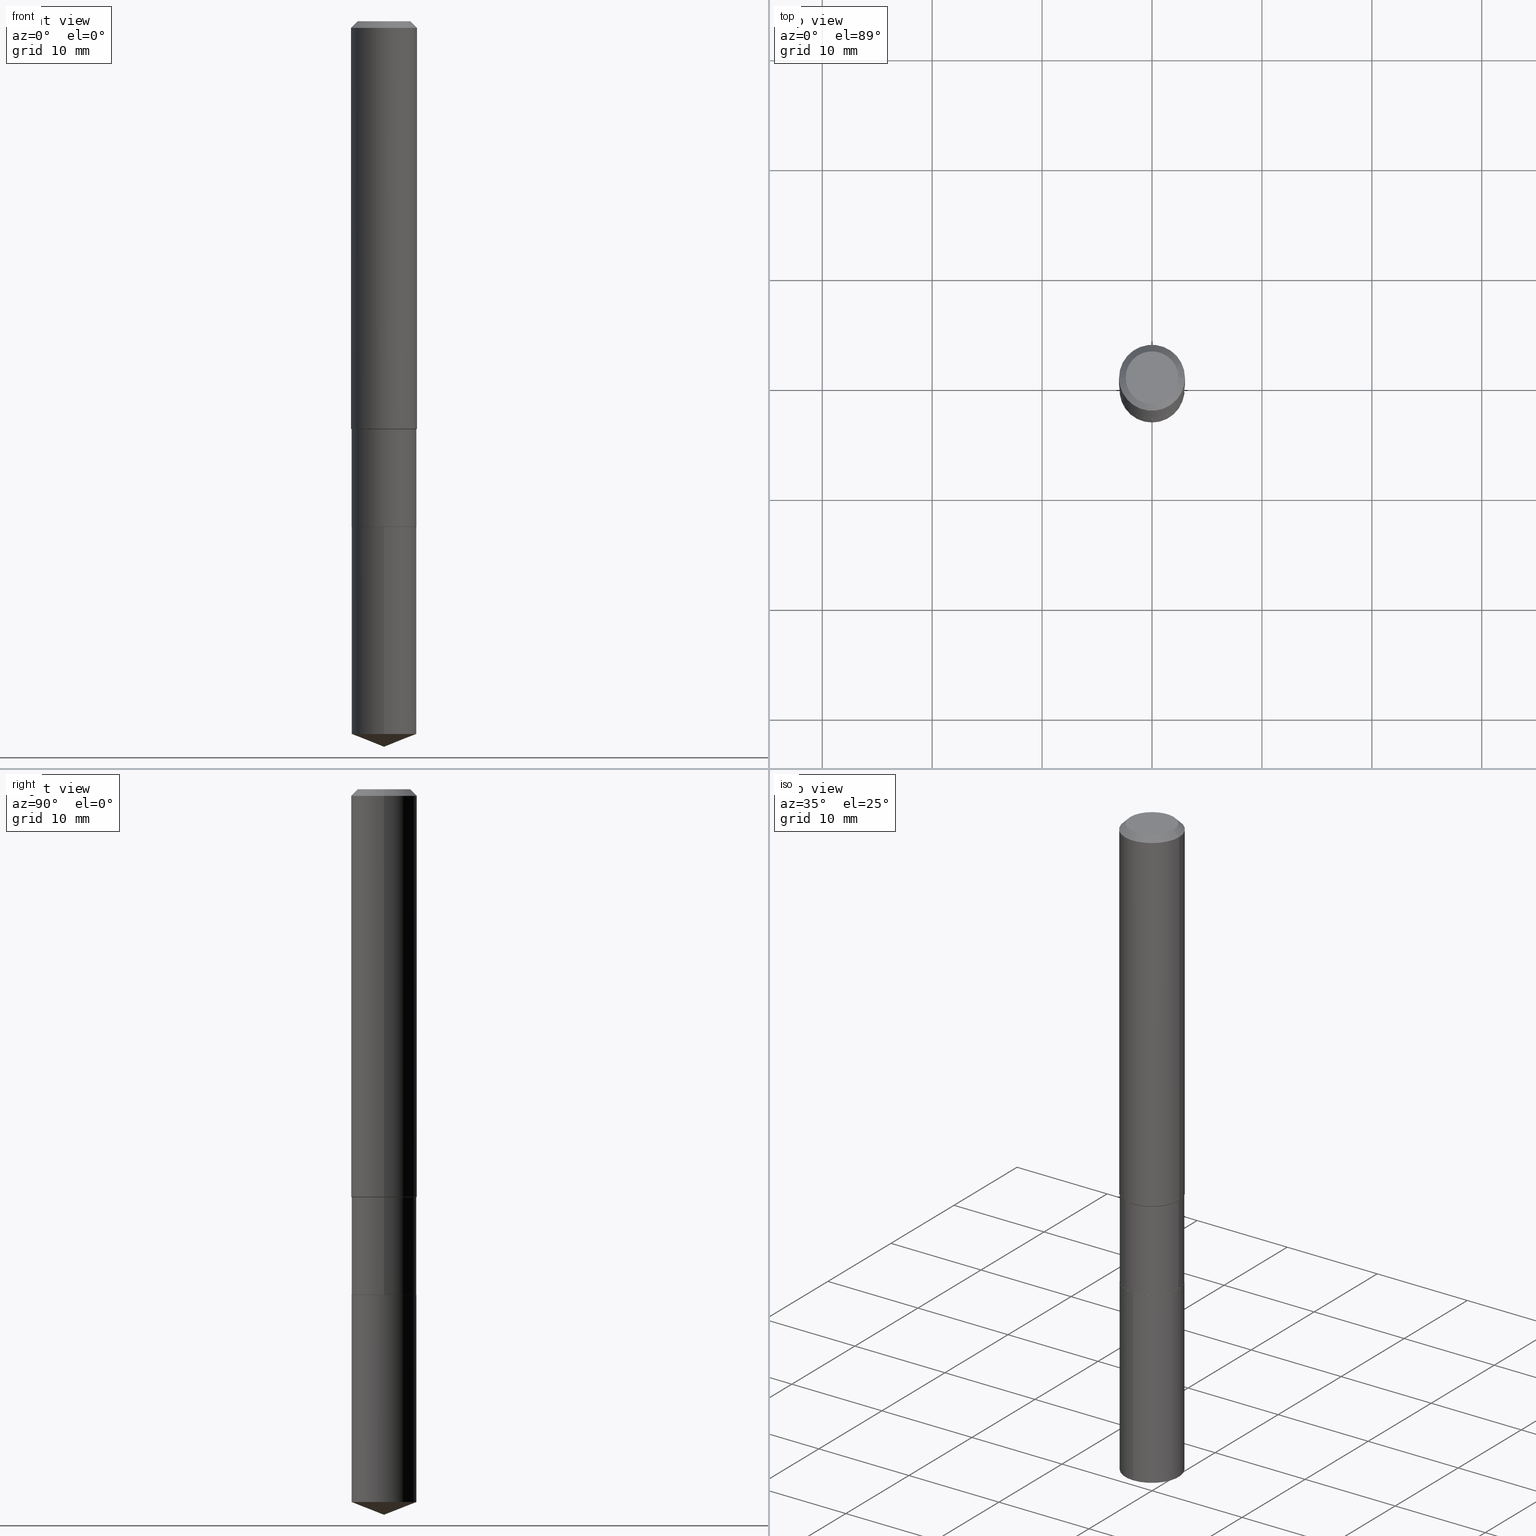
[diagram: canonical four-view strip — front | top / right | iso, engineering-drawing reading convention]
A machine part, canonical four-view strip (front | top / right | iso — engineering-drawing reading convention). The complete STEP part file that produces these views, byte-faithful:
ISO-10303-21;
HEADER;
FILE_DESCRIPTION (( 'STEP AP203' ),
    '1' );
FILE_NAME ('66429.STEP',
    '2024-04-24T22:37:58',
    ( '' ),
    ( '' ),
    'SwSTEP 2.0',
    'SolidWorks 2023',
    '' );
FILE_SCHEMA (( 'CONFIG_CONTROL_DESIGN' ));
ENDSEC;

DATA;
#1 = CC_DESIGN_PERSON_AND_ORGANIZATION_ASSIGNMENT ( #156, #199, ( #112 ) ) ;
#2 = DIRECTION ( 'NONE',  ( -6.982962677686265922E-15, -1.000000000000000000, 2.351999994545211393E-15 ) ) ;
#3 = CALENDAR_DATE ( 2024, 24, 4 ) ;
#4 =( NAMED_UNIT ( * ) SI_UNIT ( $, .STERADIAN. ) SOLID_ANGLE_UNIT ( ) );
#5 = VERTEX_POINT ( 'NONE', #274 ) ;
#6 = DIRECTION ( 'NONE',  ( 2.445468806185136597E-29, -3.491481338843145583E-15, -1.000000000000000000 ) ) ;
#7 = CARTESIAN_POINT ( 'NONE',  ( 0.000000000000000000, 0.000000000000000000, 0.000000000000000000 ) ) ;
#8 = CIRCLE ( 'NONE', #376, 0.1180999999999999966 ) ;
#9 = CONICAL_SURFACE ( 'NONE', #242, 99.94676754583970535, 1.195550537616118625 ) ;
#10 = CARTESIAN_POINT ( 'NONE',  ( 0.1180999999999999966, -9.071566814582237199E-16, -0.02362000000000014088 ) ) ;
#11 = UNCERTAINTY_MEASURE_WITH_UNIT (LENGTH_MEASURE( 1.000000000000000082E-05 ), #81, 'distance_accuracy_value', 'NONE');
#12 = ADVANCED_FACE ( 'NONE', ( #427 ), #18, .T. ) ;
#13 = DIRECTION ( 'NONE',  ( 1.000000000000000000, -6.982962677686266711E-15, 0.000000000000000000 ) ) ;
#14 = DIRECTION ( 'NONE',  ( -2.445580598395875501E-29, 3.491321246034550326E-15, 1.000000000000000000 ) ) ;
#15 = DIRECTION ( 'NONE',  ( 1.000000000000000000, -6.982962677686269866E-15, 0.000000000000000000 ) ) ;
#16 = EDGE_CURVE ( 'NONE', #17, #189, #161, .T. ) ;
#17 = VERTEX_POINT ( 'NONE', #236 ) ;
#18 = CONICAL_SURFACE ( 'NONE', #82, 0.1156500000000000028, 0.7853981633975507526 ) ;
#19 = CIRCLE ( 'NONE', #487, 0.1161500000000000032 ) ;
#20 = APPROVAL_DATE_TIME ( #325, #33 ) ;
#21 = PRODUCT_DEFINITION ( 'UNKNOWN', '', #112, #97 ) ;
#22 = LINE ( 'NONE', #343, #224 ) ;
#23 = DIRECTION ( 'NONE',  ( -6.982962677686265922E-15, -1.000000000000000000, 2.351999994545211393E-15 ) ) ;
#24 = ORIENTED_EDGE ( 'NONE', *, *, #470, .F. ) ;
#25 = CARTESIAN_POINT ( 'NONE',  ( 4.428744008001282238E-29, -6.323072704644935995E-15, -1.810999999999999943 ) ) ;
#26 = DIRECTION ( 'NONE',  ( 1.000000000000000000, -6.982962677686263555E-15, 0.000000000000000000 ) ) ;
#27 = DIRECTION ( 'NONE',  ( -2.445580598395875501E-29, 3.491321246034550326E-15, 1.000000000000000000 ) ) ;
#28 = APPROVAL_ROLE ( '' ) ;
#29 = ORIENTED_EDGE ( 'NONE', *, *, #71, .T. ) ;
#30 = ORIENTED_EDGE ( 'NONE', *, *, #338, .T. ) ;
#31 = CIRCLE ( 'NONE', #214, 0.1161499999999999477 ) ;
#32 = CC_DESIGN_SECURITY_CLASSIFICATION ( #220, ( #112 ) ) ;
#33 = APPROVAL ( #108, 'UNSPECIFIED' ) ;
#34 = VERTEX_POINT ( 'NONE', #10 ) ;
#35 = PLANE ( 'NONE',  #349 ) ;
#36 = ORIENTED_EDGE ( 'NONE', *, *, #454, .F. ) ;
#37 = LINE ( 'NONE', #183, #429 ) ;
#38 = DIRECTION ( 'NONE',  ( 1.000000000000000000, -6.982962677686269866E-15, 0.000000000000000000 ) ) ;
#39 = ORIENTED_EDGE ( 'NONE', *, *, #40, .F. ) ;
#40 = EDGE_CURVE ( 'NONE', #149, #458, #339, .T. ) ;
#41 = AXIS2_PLACEMENT_3D ( 'NONE', #372, #192, #123 ) ;
#42 = ORIENTED_EDGE ( 'NONE', *, *, #79, .F. ) ;
#43 = DIRECTION ( 'NONE',  ( -6.982962677686265922E-15, -1.000000000000000000, 2.351999994545211393E-15 ) ) ;
#44 = DIRECTION ( 'NONE',  ( -1.000000000000000000, 6.982962677686266711E-15, 0.000000000000000000 ) ) ;
#45 = CIRCLE ( 'NONE', #486, 0.1161500000000000032 ) ;
#46 = DIRECTION ( 'NONE',  ( 6.611014441532064222E-15, 0.9304175679820269051, 0.3665012267242913624 ) ) ;
#47 = CALENDAR_DATE ( 2024, 24, 4 ) ;
#48 =( NAMED_UNIT ( * ) PLANE_ANGLE_UNIT ( ) SI_UNIT ( $, .RADIAN. ) );
#49 = VERTEX_POINT ( 'NONE', #409 ) ;
#50 = LINE ( 'NONE', #344, #137 ) ;
#51 = ADVANCED_FACE ( 'NONE', ( #226 ), #370, .F. ) ;
#52 = ORIENTED_EDGE ( 'NONE', *, *, #408, .F. ) ;
#53 = AXIS2_PLACEMENT_3D ( 'NONE', #146, #469, #480 ) ;
#54 = CIRCLE ( 'NONE', #163, 0.1161500000000000032 ) ;
#55 = DIRECTION ( 'NONE',  ( -2.445468806185136597E-29, 3.491481338843145583E-15, 1.000000000000000000 ) ) ;
#56 = PERSON_AND_ORGANIZATION ( #463, #296 ) ;
#57 = DIRECTION ( 'NONE',  ( -2.445468806185136597E-29, 3.491481338843145583E-15, 1.000000000000000000 ) ) ;
#58 = EDGE_CURVE ( 'NONE', #219, #34, #253, .T. ) ;
#59 = CARTESIAN_POINT ( 'NONE',  ( -8.992830655306888007E-28, 1.283814533097924316E-13, 36.77167874015748339 ) ) ;
#60 = CARTESIAN_POINT ( 'NONE',  ( 3.568550355425659512E-29, -5.094944143706858142E-15, -1.459249999999999492 ) ) ;
#61 = CC_DESIGN_PERSON_AND_ORGANIZATION_ASSIGNMENT ( #415, #234, ( #220 ) ) ;
#62 = CALENDAR_DATE ( 2024, 24, 4 ) ;
#63 = AXIS2_PLACEMENT_3D ( 'NONE', #60, #176, #26 ) ;
#64 = CIRCLE ( 'NONE', #69, 0.09447999999999998066 ) ;
#65 = EDGE_CURVE ( 'NONE', #301, #219, #316, .T. ) ;
#66 = ORIENTED_EDGE ( 'NONE', *, *, #408, .T. ) ;
#67 = CLOSED_SHELL ( 'NONE', ( #300, #186, #363, #198, #250, #266, #449, #175, #170, #51, #473, #12 ) ) ;
#68 = AXIS2_PLACEMENT_3D ( 'NONE', #428, #315, #23 ) ;
#69 = AXIS2_PLACEMENT_3D ( 'NONE', #388, #334, #308 ) ;
#70 = VERTEX_POINT ( 'NONE', #323 ) ;
#71 = EDGE_CURVE ( 'NONE', #5, #264, #354, .T. ) ;
#72 = VECTOR ( 'NONE', #282, 39.37007874015748143 ) ;
#73 = AXIS2_PLACEMENT_3D ( 'NONE', #249, #452, #271 ) ;
#74 = ORIENTED_EDGE ( 'NONE', *, *, #58, .T. ) ;
#75 = LINE ( 'NONE', #184, #277 ) ;
#76 = CARTESIAN_POINT ( 'NONE',  ( 5.776197320209327532E-31, -8.246878922347559293E-17, -0.02362000000000014088 ) ) ;
#77 = CARTESIAN_POINT ( 'NONE',  ( 4.428744008001282238E-29, -6.323072704644935995E-15, -1.810999999999999943 ) ) ;
#78 = DIRECTION ( 'NONE',  ( 0.7071067811866199593, -2.468850131083015945E-15, 0.7071067811864750752 ) ) ;
#79 = EDGE_CURVE ( 'NONE', #153, #472, #45, .T. ) ;
#80 = CARTESIAN_POINT ( 'NONE',  ( -0.1156500000000000028, -5.501330030738379913E-15, -1.810999999999999943 ) ) ;
#81 =( CONVERSION_BASED_UNIT ( 'INCH', #475 ) LENGTH_UNIT ( ) NAMED_UNIT ( #101 ) );
#82 = AXIS2_PLACEMENT_3D ( 'NONE', #107, #204, #38 ) ;
#83 = VECTOR ( 'NONE', #105, 39.37007874015748143 ) ;
#84 = MECHANICAL_CONTEXT ( 'NONE', #314, 'mechanical' ) ;
#85 = DIRECTION ( 'NONE',  ( 1.000000000000000000, -6.982962677686266711E-15, 0.000000000000000000 ) ) ;
#86 = FACE_OUTER_BOUND ( 'NONE', #180, .T. ) ;
#87 = EDGE_LOOP ( 'NONE', ( #172, #223, #39, #426 ) ) ;
#88 = CARTESIAN_POINT ( 'NONE',  ( -8.110711150131975245E-16, -0.1161500000000089128, -2.552647298257324060 ) ) ;
#89 = MANIFOLD_SOLID_BREP ( 'Body-Move/Copy2[2]', #67 ) ;
#90 = ORIENTED_EDGE ( 'NONE', *, *, #239, .F. ) ;
#91 = FACE_OUTER_BOUND ( 'NONE', #87, .T. ) ;
#92 = AXIS2_PLACEMENT_3D ( 'NONE', #222, #438, #286 ) ;
#93 = CC_DESIGN_DATE_AND_TIME_ASSIGNMENT ( #289, #135, ( #21 ) ) ;
#94 = DIRECTION ( 'NONE',  ( -6.497071151882117470E-15, -0.9304175679820243516, 0.3665012267242979127 ) ) ;
#95 = DIRECTION ( 'NONE',  ( 1.000000000000000000, -6.982962677686269866E-15, 0.000000000000000000 ) ) ;
#96 = AXIS2_PLACEMENT_3D ( 'NONE', #441, #141, #85 ) ;
#97 = DESIGN_CONTEXT ( 'detailed design', #130, 'design' ) ;
#98 = EDGE_LOOP ( 'NONE', ( #255, #464, #425, #256 ) ) ;
#99 = APPROVAL_PERSON_ORGANIZATION ( #284, #402, #379 ) ;
#100 = EDGE_CURVE ( 'NONE', #153, #436, #479, .T. ) ;
#101 = DIMENSIONAL_EXPONENTS ( 1.000000000000000000, 0.000000000000000000, 0.000000000000000000, 0.000000000000000000, 0.000000000000000000, 0.000000000000000000, 0.000000000000000000 ) ;
#102 = CIRCLE ( 'NONE', #96, 0.1180999999999999966 ) ;
#103 = CC_DESIGN_APPROVAL ( #422, ( #220 ) ) ;
#104 = EDGE_CURVE ( 'NONE', #5, #34, #37, .T. ) ;
#105 = DIRECTION ( 'NONE',  ( -2.445580598395875221E-29, 3.491321246034550326E-15, 1.000000000000000000 ) ) ;
#106 = EDGE_CURVE ( 'NONE', #357, #34, #102, .T. ) ;
#107 = CARTESIAN_POINT ( 'NONE',  ( 4.428744008001282238E-29, -6.323072704644935995E-15, -1.810999999999999943 ) ) ;
#108 = APPROVAL_STATUS ( 'not_yet_approved' ) ;
#109 = ORIENTED_EDGE ( 'NONE', *, *, #352, .T. ) ;
#110 = DIRECTION ( 'NONE',  ( -2.445468806185136597E-29, 3.491481338843145583E-15, 1.000000000000000000 ) ) ;
#111 = CONICAL_SURFACE ( 'NONE', #395, 0.1180999999999999966, 0.7853981633974460586 ) ;
#112 = PRODUCT_DEFINITION_FORMATION_WITH_SPECIFIED_SOURCE ( 'ANY', '', #122, .NOT_KNOWN. ) ;
#113 = DIRECTION ( 'NONE',  ( -2.445468806185136597E-29, 3.491481338843145583E-15, 1.000000000000000000 ) ) ;
#114 = ORIENTED_EDGE ( 'NONE', *, *, #152, .F. ) ;
#115 = EDGE_LOOP ( 'NONE', ( #114, #365, #181, #369 ) ) ;
#116 = ORIENTED_EDGE ( 'NONE', *, *, #104, .F. ) ;
#117 = CC_DESIGN_DATE_AND_TIME_ASSIGNMENT ( #159, #139, ( #220 ) ) ;
#118 = DIRECTION ( 'NONE',  ( 2.438088387897960049E-29, -3.491481338843145188E-15, -1.000000000000000000 ) ) ;
#119 = APPLICATION_PROTOCOL_DEFINITION ( 'international standard', 'config_control_design', 1994, #130 ) ;
#120 = FACE_OUTER_BOUND ( 'NONE', #345, .T. ) ;
#121 = EDGE_LOOP ( 'NONE', ( #361, #417 ) ) ;
#122 = PRODUCT ( '66429', '66429', '', ( #84 ) ) ;
#123 = DIRECTION ( 'NONE',  ( 1.000000000000000000, -6.982962677686266711E-15, 4.876176775795936353E-29 ) ) ;
#124 = ORIENTED_EDGE ( 'NONE', *, *, #459, .F. ) ;
#125 = PERSON_AND_ORGANIZATION_ROLE ( 'creator' ) ;
#126 = LOCAL_TIME ( 18, 37, 58.00000000000000000, #273 ) ;
#127 = CARTESIAN_POINT ( 'NONE',  ( 4.428744008001282238E-29, -6.323072704644935995E-15, -1.810999999999999943 ) ) ;
#128 = EDGE_CURVE ( 'NONE', #34, #357, #8, .T. ) ;
#129 = ORIENTED_EDGE ( 'NONE', *, *, #65, .T. ) ;
#130 = APPLICATION_CONTEXT ( 'configuration controlled 3d designs of mechanical parts and assemblies' ) ;
#131 = VERTEX_POINT ( 'NONE', #167 ) ;
#132 = VECTOR ( 'NONE', #197, 39.37007874015748143 ) ;
#133 = APPROVAL_PERSON_ORGANIZATION ( #56, #422, #143 ) ;
#134 = LINE ( 'NONE', #432, #188 ) ;
#135 = DATE_TIME_ROLE ( 'creation_date' ) ;
#136 = CARTESIAN_POINT ( 'NONE',  ( 4.428744008001282238E-29, -6.323072704644935995E-15, -1.810999999999999943 ) ) ;
#137 = VECTOR ( 'NONE', #380, 39.37007874015748143 ) ;
#138 = CARTESIAN_POINT ( 'NONE',  ( 8.252953875854189062E-16, 0.1161499999999936888, -1.811000000000000165 ) ) ;
#139 = DATE_TIME_ROLE ( 'classification_date' ) ;
#140 = COORDINATED_UNIVERSAL_TIME_OFFSET ( 5, 0, .BEHIND. ) ;
#141 = DIRECTION ( 'NONE',  ( -2.445468806185136597E-29, 3.491481338843145583E-15, 1.000000000000000000 ) ) ;
#142 = EDGE_LOOP ( 'NONE', ( #272, #298, #280, #147 ) ) ;
#143 = APPROVAL_ROLE ( '' ) ;
#144 = EDGE_CURVE ( 'NONE', #131, #472, #235, .T. ) ;
#145 = LOCAL_TIME ( 18, 37, 58.00000000000000000, #243 ) ;
#146 = CARTESIAN_POINT ( 'NONE',  ( 0.000000000000000000, 0.000000000000000000, 0.000000000000000000 ) ) ;
#147 = ORIENTED_EDGE ( 'NONE', *, *, #65, .F. ) ;
#148 = LINE ( 'NONE', #294, #83 ) ;
#149 = VERTEX_POINT ( 'NONE', #455 ) ;
#150 = DIRECTION ( 'NONE',  ( -2.445580598395875501E-29, 3.491321246034550326E-15, 1.000000000000000000 ) ) ;
#151 = CARTESIAN_POINT ( 'NONE',  ( 0.000000000000000000, 0.000000000000000000, 0.000000000000000000 ) ) ;
#152 = EDGE_CURVE ( 'NONE', #189, #49, #310, .T. ) ;
#153 = VERTEX_POINT ( 'NONE', #88 ) ;
#154 = AXIS2_PLACEMENT_3D ( 'NONE', #155, #337, #306 ) ;
#155 = CARTESIAN_POINT ( 'NONE',  ( -8.992830655306888007E-28, 1.283814533097924316E-13, 36.77167874015748339 ) ) ;
#156 = PERSON_AND_ORGANIZATION ( #463, #296 ) ;
#157 = CARTESIAN_POINT ( 'NONE',  ( 5.776197320209327532E-31, -8.246878922347559293E-17, -0.02362000000000014088 ) ) ;
#158 = DIRECTION ( 'NONE',  ( -2.445580598395875501E-29, 3.491321246034550326E-15, 1.000000000000000000 ) ) ;
#159 = DATE_AND_TIME ( #3, #340 ) ;
#160 = EDGE_CURVE ( 'NONE', #301, #357, #50, .T. ) ;
#161 = CIRCLE ( 'NONE', #467, 0.1156500000000000028 ) ;
#162 = DIRECTION ( 'NONE',  ( -1.000000000000000000, 6.982962677686266711E-15, 0.000000000000000000 ) ) ;
#163 = AXIS2_PLACEMENT_3D ( 'NONE', #225, #158, #190 ) ;
#164 = ORIENTED_EDGE ( 'NONE', *, *, #100, .F. ) ;
#165 = CARTESIAN_POINT ( 'NONE',  ( 3.573319019597720765E-29, -5.101752532317603189E-15, -1.461199999999999610 ) ) ;
#166 = APPROVAL_STATUS ( 'not_yet_approved' ) ;
#167 = CARTESIAN_POINT ( 'NONE',  ( 6.354596626871842033E-29, -9.071849125696174722E-15, -2.598399999999999821 ) ) ;
#168 = ADVANCED_FACE ( 'NONE', ( #203 ), #418, .T. ) ;
#169 = DIRECTION ( 'NONE',  ( -6.982962677686266711E-15, -1.000000000000000000, 3.498627837350013689E-15 ) ) ;
#170 = ADVANCED_FACE ( 'NONE', ( #342 ), #396, .T. ) ;
#171 = AXIS2_PLACEMENT_3D ( 'NONE', #304, #118, #414 ) ;
#172 = ORIENTED_EDGE ( 'NONE', *, *, #307, .T. ) ;
#173 = DIRECTION ( 'NONE',  ( 6.982962677686265922E-15, 1.000000000000000000, -3.491321246034550326E-15 ) ) ;
#174 = EDGE_LOOP ( 'NONE', ( #483, #202 ) ) ;
#175 = ADVANCED_FACE ( 'NONE', ( #238 ), #227, .T. ) ;
#176 = DIRECTION ( 'NONE',  ( -2.445468806185136597E-29, 3.491481338843145583E-15, 1.000000000000000000 ) ) ;
#177 = FACE_OUTER_BOUND ( 'NONE', #437, .T. ) ;
#178 = CALENDAR_DATE ( 2024, 24, 4 ) ;
#179 = AXIS2_PLACEMENT_3D ( 'NONE', #386, #55, #209 ) ;
#180 = EDGE_LOOP ( 'NONE', ( #401, #394, #257, #164 ) ) ;
#181 = ORIENTED_EDGE ( 'NONE', *, *, #459, .T. ) ;
#182 = CIRCLE ( 'NONE', #92, 0.1161500000000000032 ) ;
#183 = CARTESIAN_POINT ( 'NONE',  ( 0.1180999999999999966, -8.926936027602933910E-16, -0.02362000000000014088 ) ) ;
#184 = CARTESIAN_POINT ( 'NONE',  ( 0.1156500000000000028, -7.130652338319353523E-15, -1.810999999999999943 ) ) ;
#185 = ORIENTED_EDGE ( 'NONE', *, *, #196, .F. ) ;
#186 = ADVANCED_FACE ( 'NONE', ( #485 ), #111, .T. ) ;
#187 = ORIENTED_EDGE ( 'NONE', *, *, #144, .T. ) ;
#188 = VECTOR ( 'NONE', #94, 39.37007874015748854 ) ;
#189 = VERTEX_POINT ( 'NONE', #451 ) ;
#190 = DIRECTION ( 'NONE',  ( -6.982962677686265922E-15, -1.000000000000000000, 4.703999989090422785E-15 ) ) ;
#191 = DIRECTION ( 'NONE',  ( 1.000000000000000000, 0.000000000000000000, 0.000000000000000000 ) ) ;
#192 = DIRECTION ( 'NONE',  ( -2.445468806185136597E-29, 3.491481338843145583E-15, 1.000000000000000000 ) ) ;
#193 = EDGE_LOOP ( 'NONE', ( #36, #109, #330, #24 ) ) ;
#194 = AXIS2_PLACEMENT_3D ( 'NONE', #351, #466, #287 ) ;
#195 = LOCAL_TIME ( 18, 37, 58.00000000000000000, #140 ) ;
#196 = EDGE_CURVE ( 'NONE', #458, #149, #31, .T. ) ;
#197 = DIRECTION ( 'NONE',  ( -0.7071067811866199593, 7.493145998870616062E-15, 0.7071067811864750752 ) ) ;
#198 = ADVANCED_FACE ( 'NONE', ( #391 ), #303, .T. ) ;
#199 = PERSON_AND_ORGANIZATION_ROLE ( 'design_supplier' ) ;
#200 = CARTESIAN_POINT ( 'NONE',  ( -0.1180999999999999966, 7.422191030112725094E-16, -0.02362000000000014088 ) ) ;
#201 = CARTESIAN_POINT ( 'NONE',  ( -0.1161499999999999477, -4.276457144732246997E-15, -1.461199999999999610 ) ) ;
#202 = ORIENTED_EDGE ( 'NONE', *, *, #470, .T. ) ;
#203 = FACE_OUTER_BOUND ( 'NONE', #481, .T. ) ;
#204 = DIRECTION ( 'NONE',  ( -2.445468806185136597E-29, 3.491481338843145583E-15, 1.000000000000000000 ) ) ;
#205 = AXIS2_PLACEMENT_3D ( 'NONE', #373, #6, #162 ) ;
#206 = VECTOR ( 'NONE', #251, 39.37007874015748143 ) ;
#207 = EDGE_CURVE ( 'NONE', #49, #458, #285, .T. ) ;
#208 = CYLINDRICAL_SURFACE ( 'NONE', #53, 0.1161499999999999755 ) ;
#209 = DIRECTION ( 'NONE',  ( 1.000000000000000000, -6.982962677686267499E-15, 4.875432709231658792E-29 ) ) ;
#210 = DIRECTION ( 'NONE',  ( 1.000000000000000000, -6.982962677686269866E-15, 0.000000000000000000 ) ) ;
#211 = FACE_OUTER_BOUND ( 'NONE', #193, .T. ) ;
#212 = ORIENTED_EDGE ( 'NONE', *, *, #457, .T. ) ;
#213 = PLANE ( 'NONE',  #348 ) ;
#214 = AXIS2_PLACEMENT_3D ( 'NONE', #267, #278, #15 ) ;
#215 = EDGE_LOOP ( 'NONE', ( #413, #129, #74, #461 ) ) ;
#216 = ORIENTED_EDGE ( 'NONE', *, *, #416, .T. ) ;
#217 = CC_DESIGN_PERSON_AND_ORGANIZATION_ASSIGNMENT ( #336, #305, ( #122 ) ) ;
#218 = CIRCLE ( 'NONE', #68, 0.1161500000000000032 ) ;
#219 = VERTEX_POINT ( 'NONE', #460 ) ;
#220 = SECURITY_CLASSIFICATION ( '', '', #268 ) ;
#221 = ORIENTED_EDGE ( 'NONE', *, *, #58, .F. ) ;
#222 = CARTESIAN_POINT ( 'NONE',  ( 4.427521273598189436E-29, -6.321326963975514491E-15, -1.810499999999999998 ) ) ;
#223 = ORIENTED_EDGE ( 'NONE', *, *, #207, .T. ) ;
#224 = VECTOR ( 'NONE', #229, 39.37007874015748143 ) ;
#225 = CARTESIAN_POINT ( 'NONE',  ( 6.242502251472113961E-29, -8.912401674114856176E-15, -2.552647298257324504 ) ) ;
#226 = FACE_OUTER_BOUND ( 'NONE', #252, .T. ) ;
#227 = CYLINDRICAL_SURFACE ( 'NONE', #41, 0.1181000000000000799 ) ;
#228 = DIRECTION ( 'NONE',  ( -2.445580598395875501E-29, 3.491321246034550326E-15, 1.000000000000000000 ) ) ;
#229 = DIRECTION ( 'NONE',  ( -2.445468806185136877E-29, 3.491481338843145188E-15, 1.000000000000000000 ) ) ;
#230 = AXIS2_PLACEMENT_3D ( 'NONE', #165, #110, #259 ) ;
#231 = AXIS2_PLACEMENT_3D ( 'NONE', #374, #299, #477 ) ;
#232 = CC_DESIGN_PERSON_AND_ORGANIZATION_ASSIGNMENT ( #383, #125, ( #112 ) ) ;
#233 = DIRECTION ( 'NONE',  ( 1.000000000000000000, -6.982962677686269866E-15, 0.000000000000000000 ) ) ;
#234 = PERSON_AND_ORGANIZATION_ROLE ( 'classification_officer' ) ;
#235 = LINE ( 'NONE', #490, #322 ) ;
#236 = CARTESIAN_POINT ( 'NONE',  ( 0.1156500000000000028, -7.130652338319353523E-15, -1.810999999999999943 ) ) ;
#237 = ORIENTED_EDGE ( 'NONE', *, *, #104, .T. ) ;
#238 = FACE_OUTER_BOUND ( 'NONE', #215, .T. ) ;
#239 = EDGE_CURVE ( 'NONE', #131, #153, #134, .T. ) ;
#240 = DATE_AND_TIME ( #47, #126 ) ;
#241 = AXIS2_PLACEMENT_3D ( 'NONE', #136, #279, #387 ) ;
#242 = AXIS2_PLACEMENT_3D ( 'NONE', #59, #150, #169 ) ;
#243 = COORDINATED_UNIVERSAL_TIME_OFFSET ( 5, 0, .BEHIND. ) ;
#244 = AXIS2_PLACEMENT_3D ( 'NONE', #317, #57, #210 ) ;
#245 = CARTESIAN_POINT ( 'NONE',  ( -0.1161499999999999477, -4.886244360561203043E-15, -1.461199999999999610 ) ) ;
#246 = EDGE_CURVE ( 'NONE', #189, #17, #312, .T. ) ;
#247 = ADVANCED_FACE ( 'NONE', ( #393 ), #213, .F. ) ;
#248 = MANIFOLD_SOLID_BREP ( 'Body-Move/Copy2[1]', #275 ) ;
#249 = CARTESIAN_POINT ( 'NONE',  ( 3.568550355425659512E-29, -5.094944143706858142E-15, -1.459249999999999492 ) ) ;
#250 = ADVANCED_FACE ( 'NONE', ( #91 ), #208, .T. ) ;
#251 = DIRECTION ( 'NONE',  ( 0.7071067811865444641, -2.468850131082224717E-15, 0.7071067811865505703 ) ) ;
#252 = EDGE_LOOP ( 'NONE', ( #66, #29 ) ) ;
#253 = LINE ( 'NONE', #291, #434 ) ;
#254 = ORIENTED_EDGE ( 'NONE', *, *, #128, .T. ) ;
#255 = ORIENTED_EDGE ( 'NONE', *, *, #40, .T. ) ;
#256 = ORIENTED_EDGE ( 'NONE', *, *, #488, .F. ) ;
#257 = ORIENTED_EDGE ( 'NONE', *, *, #290, .F. ) ;
#258 = CC_DESIGN_APPROVAL ( #33, ( #21 ) ) ;
#259 = DIRECTION ( 'NONE',  ( 1.000000000000000000, -6.982962677686269866E-15, 0.000000000000000000 ) ) ;
#260 = DIRECTION ( 'NONE',  ( 1.000000000000000000, -6.982962677686266711E-15, 4.876176775795936353E-29 ) ) ;
#261 = ORIENTED_EDGE ( 'NONE', *, *, #152, .T. ) ;
#262 = EDGE_LOOP ( 'NONE', ( #445, #212, #216, #185 ) ) ;
#263 = PERSON_AND_ORGANIZATION ( #463, #296 ) ;
#264 = VERTEX_POINT ( 'NONE', #297 ) ;
#265 = LINE ( 'NONE', #484, #206 ) ;
#266 = ADVANCED_FACE ( 'NONE', ( #367 ), #327, .T. ) ;
#267 = CARTESIAN_POINT ( 'NONE',  ( 3.573319019597720765E-29, -5.101752532317603189E-15, -1.461199999999999610 ) ) ;
#268 = SECURITY_CLASSIFICATION_LEVEL ( 'unclassified' ) ;
#269 = DIRECTION ( 'NONE',  ( 1.000000000000000000, -6.982962677686266711E-15, 4.876176775795935232E-29 ) ) ;
#270 = APPLICATION_PROTOCOL_DEFINITION ( 'international standard', 'config_control_design', 1994, #314 ) ;
#271 = DIRECTION ( 'NONE',  ( 1.000000000000000000, -6.982962677686263555E-15, 0.000000000000000000 ) ) ;
#272 = ORIENTED_EDGE ( 'NONE', *, *, #465, .F. ) ;
#273 = COORDINATED_UNIVERSAL_TIME_OFFSET ( 5, 0, .BEHIND. ) ;
#274 = CARTESIAN_POINT ( 'NONE',  ( 0.09447999999999998066, -7.704367267948738690E-16, -1.928573779296752193E-17 ) ) ;
#275 = CLOSED_SHELL ( 'NONE', ( #366, #381, #168, #318, #247 ) ) ;
#276 = CIRCLE ( 'NONE', #194, 0.1161500000000000032 ) ;
#277 = VECTOR ( 'NONE', #78, 39.37007874015748143 ) ;
#278 = DIRECTION ( 'NONE',  ( -2.445468806185136597E-29, 3.491481338843145583E-15, 1.000000000000000000 ) ) ;
#279 = DIRECTION ( 'NONE',  ( -2.445468806185136597E-29, 3.491481338843145583E-15, 1.000000000000000000 ) ) ;
#280 = ORIENTED_EDGE ( 'NONE', *, *, #488, .T. ) ;
#281 = EDGE_CURVE ( 'NONE', #264, #357, #446, .T. ) ;
#282 = DIRECTION ( 'NONE',  ( -2.445468806185136877E-29, 3.491481338843145188E-15, 1.000000000000000000 ) ) ;
#283 = ADVANCED_BREP_SHAPE_REPRESENTATION ( '66429', ( #248, #89, #468 ), #456 ) ;
#284 = PERSON_AND_ORGANIZATION ( #463, #296 ) ;
#285 = LINE ( 'NONE', #397, #72 ) ;
#286 = DIRECTION ( 'NONE',  ( 1.000000000000000000, -6.982962677686265922E-15, 0.000000000000000000 ) ) ;
#287 = DIRECTION ( 'NONE',  ( 1.000000000000000000, -6.982962677686265922E-15, 0.000000000000000000 ) ) ;
#288 = DATE_AND_TIME ( #178, #444 ) ;
#289 = DATE_AND_TIME ( #462, #195 ) ;
#290 = EDGE_CURVE ( 'NONE', #436, #320, #218, .T. ) ;
#291 = CARTESIAN_POINT ( 'NONE',  ( 0.1181000000000000799, -8.246878922347486570E-16, 5.758764772215004644E-30 ) ) ;
#292 = DIRECTION ( 'NONE',  ( -0.7071067811865444641, 7.493145998870343116E-15, 0.7071067811865505703 ) ) ;
#293 = COORDINATED_UNIVERSAL_TIME_OFFSET ( 5, 0, .BEHIND. ) ;
#294 = CARTESIAN_POINT ( 'NONE',  ( 8.252953875854005651E-16, 0.1161499999999936888, -1.811000000000000165 ) ) ;
#295 = VECTOR ( 'NONE', #482, 39.37007874015748143 ) ;
#296 = ORGANIZATION ( 'UNSPECIFIED', 'UNSPECIFIED', '' ) ;
#297 = CARTESIAN_POINT ( 'NONE',  ( -0.09447999999999998066, 7.009847083995354710E-16, -1.928573779297727792E-17 ) ) ;
#298 = ORIENTED_EDGE ( 'NONE', *, *, #196, .T. ) ;
#299 = DIRECTION ( 'NONE',  ( -2.445468806185136597E-29, 3.491481338843145583E-15, 1.000000000000000000 ) ) ;
#300 = ADVANCED_FACE ( 'NONE', ( #177 ), #399, .T. ) ;
#301 = VERTEX_POINT ( 'NONE', #321 ) ;
#302 = DIRECTION ( 'NONE',  ( 0.7071067811865459074, -7.319954787623249734E-15, -0.7071067811865491270 ) ) ;
#303 = CONICAL_SURFACE ( 'NONE', #244, 0.1161499999999999477, 0.7853981633974439491 ) ;
#304 = CARTESIAN_POINT ( 'NONE',  ( 2.358133508849003952E-46, -3.366789680499277518E-32, -9.642868896486260050E-18 ) ) ;
#305 = PERSON_AND_ORGANIZATION_ROLE ( 'design_owner' ) ;
#306 = DIRECTION ( 'NONE',  ( -6.982962677686266711E-15, -1.000000000000000000, 3.498627837350013689E-15 ) ) ;
#307 = EDGE_CURVE ( 'NONE', #70, #49, #276, .T. ) ;
#308 = DIRECTION ( 'NONE',  ( 1.000000000000000000, -6.982962677686267499E-15, 4.875432709231658792E-29 ) ) ;
#309 = APPROVAL_DATE_TIME ( #240, #402 ) ;
#310 = LINE ( 'NONE', #80, #132 ) ;
#311 = FACE_OUTER_BOUND ( 'NONE', #375, .T. ) ;
#312 = CIRCLE ( 'NONE', #368, 0.1156500000000000028 ) ;
#313 = DIRECTION ( 'NONE',  ( 0.000000000000000000, 0.000000000000000000, 1.000000000000000000 ) ) ;
#314 = APPLICATION_CONTEXT ( 'configuration controlled 3d designs of mechanical parts and assemblies' ) ;
#315 = DIRECTION ( 'NONE',  ( -2.445580598395875501E-29, 3.491321246034550326E-15, 1.000000000000000000 ) ) ;
#316 = CIRCLE ( 'NONE', #63, 0.1181000000000001632 ) ;
#317 = CARTESIAN_POINT ( 'NONE',  ( 3.573319019597720765E-29, -5.101752532317603189E-15, -1.461199999999999610 ) ) ;
#318 = ADVANCED_FACE ( 'NONE', ( #211 ), #433, .T. ) ;
#319 = PERSON_AND_ORGANIZATION_ROLE ( 'creator' ) ;
#320 = VERTEX_POINT ( 'NONE', #138 ) ;
#321 = CARTESIAN_POINT ( 'NONE',  ( -0.1181000000000001632, -4.255793172774178367E-15, -1.459249999999999492 ) ) ;
#322 = VECTOR ( 'NONE', #46, 39.37007874015748143 ) ;
#323 = CARTESIAN_POINT ( 'NONE',  ( 0.1161500000000000032, -7.132398078988774237E-15, -1.810499999999999998 ) ) ;
#324 = AXIS2_PLACEMENT_3D ( 'NONE', #77, #228, #43 ) ;
#325 = DATE_AND_TIME ( #62, #145 ) ;
#326 = ORIENTED_EDGE ( 'NONE', *, *, #307, .F. ) ;
#327 = CYLINDRICAL_SURFACE ( 'NONE', #382, 0.1161499999999999755 ) ;
#328 = CARTESIAN_POINT ( 'NONE',  ( 4.428744008001282238E-29, -6.323072704644935995E-15, -1.810999999999999943 ) ) ;
#329 = APPROVAL_STATUS ( 'not_yet_approved' ) ;
#330 = ORIENTED_EDGE ( 'NONE', *, *, #100, .T. ) ;
#331 = DIRECTION ( 'NONE',  ( -6.982962677686265922E-15, -1.000000000000000000, 4.703999989090422785E-15 ) ) ;
#332 = EDGE_LOOP ( 'NONE', ( #392, #237, #254, #364 ) ) ;
#333 = CARTESIAN_POINT ( 'NONE',  ( -8.110711150132155697E-16, -0.1161500000000063176, -1.810999999999999721 ) ) ;
#334 = DIRECTION ( 'NONE',  ( -2.445468806185136597E-29, 3.491481338843145583E-15, 1.000000000000000000 ) ) ;
#335 = CARTESIAN_POINT ( 'NONE',  ( 4.428744008001282238E-29, -6.323072704644935995E-15, -1.810999999999999943 ) ) ;
#336 = PERSON_AND_ORGANIZATION ( #463, #296 ) ;
#337 = DIRECTION ( 'NONE',  ( -2.445580598395875501E-29, 3.491321246034550326E-15, 1.000000000000000000 ) ) ;
#338 = EDGE_CURVE ( 'NONE', #219, #301, #384, .T. ) ;
#339 = CIRCLE ( 'NONE', #230, 0.1161499999999999477 ) ;
#340 = LOCAL_TIME ( 18, 37, 58.00000000000000000, #346 ) ;
#341 = DIRECTION ( 'NONE',  ( -2.445580598395875501E-29, 3.491321246034550326E-15, 1.000000000000000000 ) ) ;
#342 = FACE_OUTER_BOUND ( 'NONE', #424, .T. ) ;
#343 = CARTESIAN_POINT ( 'NONE',  ( 0.1161499999999999755, -8.110711150132597459E-16, 5.663679325086977697E-30 ) ) ;
#344 = CARTESIAN_POINT ( 'NONE',  ( -0.1181000000000000799, 8.391509709326788873E-16, -5.809262341591047988E-30 ) ) ;
#345 = EDGE_LOOP ( 'NONE', ( #90, #187, #42 ) ) ;
#346 = COORDINATED_UNIVERSAL_TIME_OFFSET ( 5, 0, .BEHIND. ) ;
#347 = DIRECTION ( 'NONE',  ( -2.438088387897960049E-29, 3.491481338843145188E-15, 1.000000000000000000 ) ) ;
#348 = AXIS2_PLACEMENT_3D ( 'NONE', #25, #355, #173 ) ;
#349 = AXIS2_PLACEMENT_3D ( 'NONE', #328, #347, #447 ) ;
#350 = CARTESIAN_POINT ( 'NONE',  ( 6.242502251472113961E-29, -8.912401674114856176E-15, -2.552647298257324504 ) ) ;
#351 = CARTESIAN_POINT ( 'NONE',  ( 4.427521273598189436E-29, -6.321326963975514491E-15, -1.810499999999999998 ) ) ;
#352 = EDGE_CURVE ( 'NONE', #472, #153, #54, .T. ) ;
#353 = CARTESIAN_POINT ( 'NONE',  ( 4.428744008001282238E-29, -6.323072704644935995E-15, -1.810999999999999943 ) ) ;
#354 = CIRCLE ( 'NONE', #179, 0.09447999999999998066 ) ;
#355 = DIRECTION ( 'NONE',  ( 2.445580598395874941E-29, -3.491321246034550326E-15, -1.000000000000000000 ) ) ;
#356 = APPROVAL_PERSON_ORGANIZATION ( #263, #33, #28 ) ;
#357 = VERTEX_POINT ( 'NONE', #378 ) ;
#358 = APPROVAL_DATE_TIME ( #288, #422 ) ;
#359 = ORIENTED_EDGE ( 'NONE', *, *, #352, .F. ) ;
#360 = VECTOR ( 'NONE', #398, 39.37007874015748143 ) ;
#361 = ORIENTED_EDGE ( 'NONE', *, *, #16, .F. ) ;
#362 = CARTESIAN_POINT ( 'NONE',  ( 0.000000000000000000, 0.000000000000000000, 0.000000000000000000 ) ) ;
#363 = ADVANCED_FACE ( 'NONE', ( #311 ), #423, .T. ) ;
#364 = ORIENTED_EDGE ( 'NONE', *, *, #281, .F. ) ;
#365 = ORIENTED_EDGE ( 'NONE', *, *, #246, .T. ) ;
#366 = ADVANCED_FACE ( 'NONE', ( #86 ), #411, .T. ) ;
#367 = FACE_OUTER_BOUND ( 'NONE', #262, .T. ) ;
#368 = AXIS2_PLACEMENT_3D ( 'NONE', #430, #385, #95 ) ;
#369 = ORIENTED_EDGE ( 'NONE', *, *, #457, .F. ) ;
#370 = PLANE ( 'NONE',  #171 ) ;
#371 = CC_DESIGN_PERSON_AND_ORGANIZATION_ASSIGNMENT ( #471, #319, ( #21 ) ) ;
#372 = CARTESIAN_POINT ( 'NONE',  ( 0.000000000000000000, 0.000000000000000000, 0.000000000000000000 ) ) ;
#373 = CARTESIAN_POINT ( 'NONE',  ( 5.776197320209327532E-31, -8.246878922347559293E-17, -0.02362000000000014088 ) ) ;
#374 = CARTESIAN_POINT ( 'NONE',  ( 3.573319019597720765E-29, -5.101752532317603189E-15, -1.461199999999999610 ) ) ;
#375 = EDGE_LOOP ( 'NONE', ( #30, #405, #474, #221 ) ) ;
#376 = AXIS2_PLACEMENT_3D ( 'NONE', #76, #113, #13 ) ;
#377 = DIRECTION ( 'NONE',  ( -2.445468806185136877E-29, 3.491481338843145188E-15, 1.000000000000000000 ) ) ;
#378 = CARTESIAN_POINT ( 'NONE',  ( -0.1180999999999999966, -1.749555495532487419E-15, -0.02362000000000014088 ) ) ;
#379 = APPROVAL_ROLE ( '' ) ;
#380 = DIRECTION ( 'NONE',  ( -2.445468806185136877E-29, 3.491481338843145188E-15, 1.000000000000000000 ) ) ;
#381 = ADVANCED_FACE ( 'NONE', ( #120 ), #9, .T. ) ;
#382 = AXIS2_PLACEMENT_3D ( 'NONE', #151, #439, #269 ) ;
#383 = PERSON_AND_ORGANIZATION ( #463, #296 ) ;
#384 = CIRCLE ( 'NONE', #73, 0.1181000000000001632 ) ;
#385 = DIRECTION ( 'NONE',  ( -2.445468806185136597E-29, 3.491481338843145583E-15, 1.000000000000000000 ) ) ;
#386 = CARTESIAN_POINT ( 'NONE',  ( 4.716267017698007905E-46, -6.733579360998555036E-32, -1.928573779297252010E-17 ) ) ;
#387 = DIRECTION ( 'NONE',  ( 1.000000000000000000, -6.982962677686269866E-15, 0.000000000000000000 ) ) ;
#388 = CARTESIAN_POINT ( 'NONE',  ( 4.716267017698007905E-46, -6.733579360998555036E-32, -1.928573779297252010E-17 ) ) ;
#389 = SHAPE_DEFINITION_REPRESENTATION ( #442, #283 ) ;
#390 = PRODUCT_RELATED_PRODUCT_CATEGORY ( 'detail', '', ( #122 ) ) ;
#391 = FACE_OUTER_BOUND ( 'NONE', #98, .T. ) ;
#392 = ORIENTED_EDGE ( 'NONE', *, *, #71, .F. ) ;
#393 = FACE_OUTER_BOUND ( 'NONE', #174, .T. ) ;
#394 = ORIENTED_EDGE ( 'NONE', *, *, #454, .T. ) ;
#395 = AXIS2_PLACEMENT_3D ( 'NONE', #157, #448, #44 ) ;
#396 = CONICAL_SURFACE ( 'NONE', #205, 0.1180999999999999966, 0.7853981633974460586 ) ;
#397 = CARTESIAN_POINT ( 'NONE',  ( -0.1161499999999999755, 8.252953875853561917E-16, -5.713343107331072131E-30 ) ) ;
#398 = DIRECTION ( 'NONE',  ( -0.7071067811865459074, 2.468850131082240100E-15, -0.7071067811865491270 ) ) ;
#399 = CONICAL_SURFACE ( 'NONE', #241, 0.1156500000000000028, 0.7853981633975507526 ) ;
#400 = AXIS2_PLACEMENT_3D ( 'NONE', #353, #27, #476 ) ;
#401 = ORIENTED_EDGE ( 'NONE', *, *, #79, .T. ) ;
#402 = APPROVAL ( #166, 'UNSPECIFIED' ) ;
#403 = FACE_OUTER_BOUND ( 'NONE', #142, .T. ) ;
#404 = ORIENTED_EDGE ( 'NONE', *, *, #106, .T. ) ;
#405 = ORIENTED_EDGE ( 'NONE', *, *, #160, .T. ) ;
#406 = CARTESIAN_POINT ( 'NONE',  ( -8.110711150132155697E-16, -0.1161500000000063176, -1.810999999999999721 ) ) ;
#407 = CONICAL_SURFACE ( 'NONE', #231, 0.1161499999999999477, 0.7853981633974439491 ) ;
#408 = EDGE_CURVE ( 'NONE', #264, #5, #64, .T. ) ;
#409 = CARTESIAN_POINT ( 'NONE',  ( -0.1161500000000000032, -4.886244360561203043E-15, -1.810499999999999998 ) ) ;
#410 =( LENGTH_UNIT ( ) NAMED_UNIT ( * ) SI_UNIT ( $, .METRE. ) );
#411 = CYLINDRICAL_SURFACE ( 'NONE', #324, 0.1161500000000000032 ) ;
#412 = ORIENTED_EDGE ( 'NONE', *, *, #16, .T. ) ;
#413 = ORIENTED_EDGE ( 'NONE', *, *, #160, .F. ) ;
#414 = DIRECTION ( 'NONE',  ( -1.000000000000000000, 6.982962677686265922E-15, -4.876176775795935793E-29 ) ) ;
#415 = PERSON_AND_ORGANIZATION ( #463, #296 ) ;
#416 = EDGE_CURVE ( 'NONE', #70, #149, #22, .T. ) ;
#417 = ORIENTED_EDGE ( 'NONE', *, *, #246, .F. ) ;
#418 = CONICAL_SURFACE ( 'NONE', #154, 99.94676754583970535, 1.195550537616118625 ) ;
#419 = CC_DESIGN_APPROVAL ( #402, ( #112 ) ) ;
#420 = CARTESIAN_POINT ( 'NONE',  ( 8.252953875854189062E-16, 0.1161499999999911215, -2.552647298257324948 ) ) ;
#421 = ORIENTED_EDGE ( 'NONE', *, *, #239, .T. ) ;
#422 = APPROVAL ( #329, 'UNSPECIFIED' ) ;
#423 = CYLINDRICAL_SURFACE ( 'NONE', #431, 0.1181000000000000799 ) ;
#424 = EDGE_LOOP ( 'NONE', ( #116, #52, #478, #404 ) ) ;
#425 = ORIENTED_EDGE ( 'NONE', *, *, #338, .F. ) ;
#426 = ORIENTED_EDGE ( 'NONE', *, *, #416, .F. ) ;
#427 = FACE_OUTER_BOUND ( 'NONE', #115, .T. ) ;
#428 = CARTESIAN_POINT ( 'NONE',  ( 4.428744008001282238E-29, -6.323072704644935995E-15, -1.810999999999999943 ) ) ;
#429 = VECTOR ( 'NONE', #302, 39.37007874015748143 ) ;
#430 = CARTESIAN_POINT ( 'NONE',  ( 4.428744008001282238E-29, -6.323072704644935995E-15, -1.810999999999999943 ) ) ;
#431 = AXIS2_PLACEMENT_3D ( 'NONE', #7, #443, #260 ) ;
#432 = CARTESIAN_POINT ( 'NONE',  ( 6.354191715484545882E-29, -9.072428981848907706E-15, -2.598399999999999821 ) ) ;
#433 = CYLINDRICAL_SURFACE ( 'NONE', #400, 0.1161500000000000032 ) ;
#434 = VECTOR ( 'NONE', #377, 39.37007874015748143 ) ;
#435 = VECTOR ( 'NONE', #292, 39.37007874015748143 ) ;
#436 = VERTEX_POINT ( 'NONE', #333 ) ;
#437 = EDGE_LOOP ( 'NONE', ( #412, #261, #326, #124 ) ) ;
#438 = DIRECTION ( 'NONE',  ( -2.445468806185136597E-29, 3.491481338843145583E-15, 1.000000000000000000 ) ) ;
#439 = DIRECTION ( 'NONE',  ( -2.445468806185136597E-29, 3.491481338843145583E-15, 1.000000000000000000 ) ) ;
#440 = DIRECTION ( 'NONE',  ( -2.445468806185136597E-29, 3.491481338843145583E-15, 1.000000000000000000 ) ) ;
#441 = CARTESIAN_POINT ( 'NONE',  ( 5.776197320209327532E-31, -8.246878922347559293E-17, -0.02362000000000014088 ) ) ;
#442 = PRODUCT_DEFINITION_SHAPE ( 'NONE', 'NONE',  #21 ) ;
#443 = DIRECTION ( 'NONE',  ( -2.445468806185136597E-29, 3.491481338843145583E-15, 1.000000000000000000 ) ) ;
#444 = LOCAL_TIME ( 18, 37, 58.00000000000000000, #293 ) ;
#445 = ORIENTED_EDGE ( 'NONE', *, *, #207, .F. ) ;
#446 = LINE ( 'NONE', #200, #360 ) ;
#447 = DIRECTION ( 'NONE',  ( 1.000000000000000000, -6.982962677686265922E-15, 4.876176775795935793E-29 ) ) ;
#448 = DIRECTION ( 'NONE',  ( 2.445468806185136597E-29, -3.491481338843145583E-15, -1.000000000000000000 ) ) ;
#449 = ADVANCED_FACE ( 'NONE', ( #403 ), #407, .T. ) ;
#450 = LINE ( 'NONE', #201, #435 ) ;
#451 = CARTESIAN_POINT ( 'NONE',  ( -0.1156500000000000028, -5.498680803564268712E-15, -1.810999999999999943 ) ) ;
#452 = DIRECTION ( 'NONE',  ( -2.445468806185136597E-29, 3.491481338843145583E-15, 1.000000000000000000 ) ) ;
#453 = ORIENTED_EDGE ( 'NONE', *, *, #144, .F. ) ;
#454 = EDGE_CURVE ( 'NONE', #472, #320, #148, .T. ) ;
#455 = CARTESIAN_POINT ( 'NONE',  ( 0.1161499999999999477, -5.912823647330862935E-15, -1.461199999999999610 ) ) ;
#456 =( GEOMETRIC_REPRESENTATION_CONTEXT ( 3 ) GLOBAL_UNCERTAINTY_ASSIGNED_CONTEXT ( ( #11 ) ) GLOBAL_UNIT_ASSIGNED_CONTEXT ( ( #81, #48, #4 ) ) REPRESENTATION_CONTEXT ( 'NONE', 'WORKASPACE' ) );
#457 = EDGE_CURVE ( 'NONE', #49, #70, #182, .T. ) ;
#458 = VERTEX_POINT ( 'NONE', #245 ) ;
#459 = EDGE_CURVE ( 'NONE', #17, #70, #75, .T. ) ;
#460 = CARTESIAN_POINT ( 'NONE',  ( 0.1181000000000001632, -5.919632035941607193E-15, -1.459249999999999492 ) ) ;
#461 = ORIENTED_EDGE ( 'NONE', *, *, #106, .F. ) ;
#462 = CALENDAR_DATE ( 2024, 24, 4 ) ;
#463 = PERSON ( 'UNSPECIFIED', 'UNSPECIFIED', 'UNSPECIFIED', ('UNSPECIFIED'), ('UNSPECIFIED'), ('UNSPECIFIED') ) ;
#464 = ORIENTED_EDGE ( 'NONE', *, *, #465, .T. ) ;
#465 = EDGE_CURVE ( 'NONE', #458, #301, #450, .T. ) ;
#466 = DIRECTION ( 'NONE',  ( -2.445468806185136597E-29, 3.491481338843145583E-15, 1.000000000000000000 ) ) ;
#467 = AXIS2_PLACEMENT_3D ( 'NONE', #335, #440, #233 ) ;
#468 = AXIS2_PLACEMENT_3D ( 'NONE', #362, #313, #191 ) ;
#469 = DIRECTION ( 'NONE',  ( -2.445468806185136597E-29, 3.491481338843145583E-15, 1.000000000000000000 ) ) ;
#470 = EDGE_CURVE ( 'NONE', #320, #436, #19, .T. ) ;
#471 = PERSON_AND_ORGANIZATION ( #463, #296 ) ;
#472 = VERTEX_POINT ( 'NONE', #420 ) ;
#473 = ADVANCED_FACE ( 'NONE', ( #489 ), #35, .F. ) ;
#474 = ORIENTED_EDGE ( 'NONE', *, *, #128, .F. ) ;
#475 = LENGTH_MEASURE_WITH_UNIT ( LENGTH_MEASURE( 0.02539999999999999897 ), #410 );
#476 = DIRECTION ( 'NONE',  ( -6.982962677686265922E-15, -1.000000000000000000, 2.351999994545211393E-15 ) ) ;
#477 = DIRECTION ( 'NONE',  ( 1.000000000000000000, -6.982962677686269866E-15, 0.000000000000000000 ) ) ;
#478 = ORIENTED_EDGE ( 'NONE', *, *, #281, .T. ) ;
#479 = LINE ( 'NONE', #406, #295 ) ;
#480 = DIRECTION ( 'NONE',  ( 1.000000000000000000, -6.982962677686266711E-15, 4.876176775795935232E-29 ) ) ;
#481 = EDGE_LOOP ( 'NONE', ( #453, #421, #359 ) ) ;
#482 = DIRECTION ( 'NONE',  ( -2.445580598395875221E-29, 3.491321246034550326E-15, 1.000000000000000000 ) ) ;
#483 = ORIENTED_EDGE ( 'NONE', *, *, #290, .T. ) ;
#484 = CARTESIAN_POINT ( 'NONE',  ( 0.1161499999999999477, -5.912823647330862935E-15, -1.461199999999999610 ) ) ;
#485 = FACE_OUTER_BOUND ( 'NONE', #332, .T. ) ;
#486 = AXIS2_PLACEMENT_3D ( 'NONE', #350, #14, #331 ) ;
#487 = AXIS2_PLACEMENT_3D ( 'NONE', #127, #341, #2 ) ;
#488 = EDGE_CURVE ( 'NONE', #149, #219, #265, .T. ) ;
#489 = FACE_OUTER_BOUND ( 'NONE', #121, .T. ) ;
#490 = CARTESIAN_POINT ( 'NONE',  ( 6.354600177466749068E-29, -9.071849125696174722E-15, -2.598399999999999821 ) ) ;
ENDSEC;
END-ISO-10303-21;
